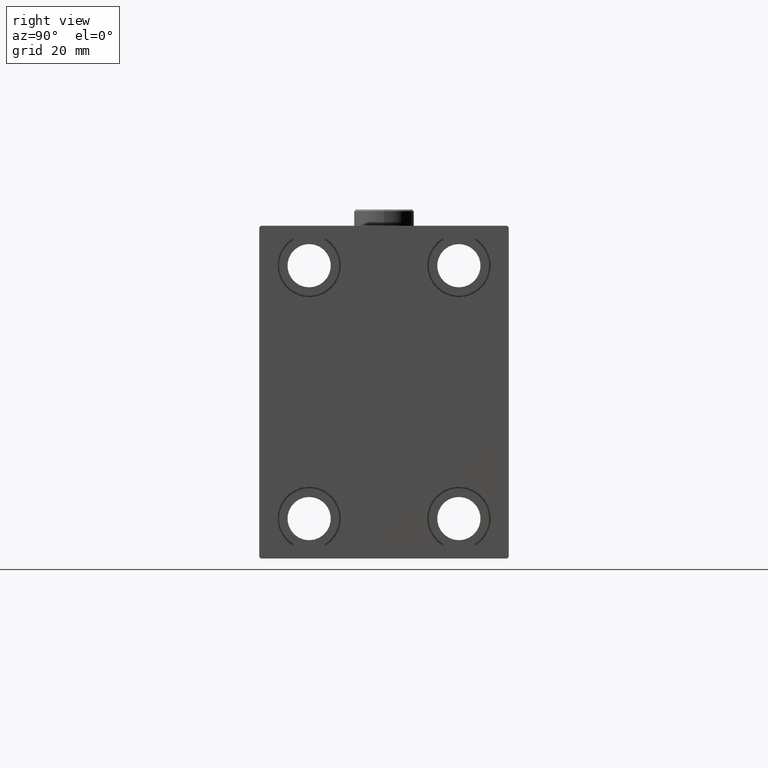
[diagram: clean part render]
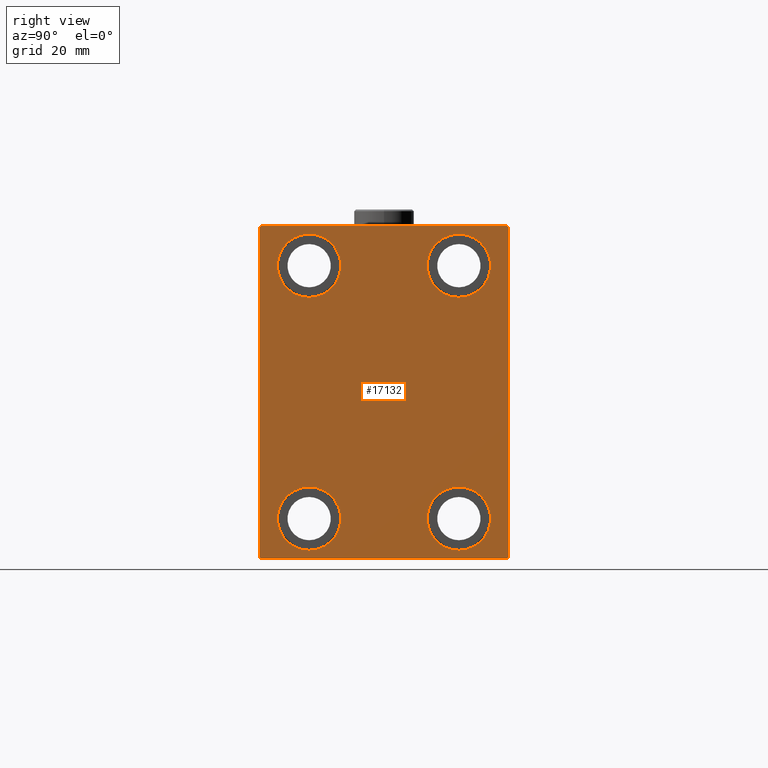
[diagram: same view with one face highlighted and labeled with its STEP entity id]
A machine part, right view. The second image highlights one B-rep face of the part: STEP entity #17132.
In plain terms, the highlighted planar face has unit normal (1, 0, 0).
Its self-contained STEP definition (entity closure, byte-faithful):
#174 = DIRECTION ( 'NONE',  ( -1.000000000000000000, -0.000000000000000000, -0.000000000000000000 ) ) ;
#225 = FACE_OUTER_BOUND ( 'NONE', #36440, .T. ) ;
#467 = FACE_BOUND ( 'NONE', #10598, .T. ) ;
#769 = LINE ( 'NONE', #16269, #4044 ) ;
#878 = DIRECTION ( 'NONE',  ( -1.000000000000000000, -0.000000000000000000, -0.000000000000000000 ) ) ;
#938 = DIRECTION ( 'NONE',  ( 0.000000000000000000, 0.000000000000000000, -1.000000000000000000 ) ) ;
#2581 = DIRECTION ( 'NONE',  ( -1.000000000000000000, -0.000000000000000000, -0.000000000000000000 ) ) ;
#3008 = AXIS2_PLACEMENT_3D ( 'NONE', #43841, #47713, #7205 ) ;
#3702 = CARTESIAN_POINT ( 'NONE',  ( 83.00000000000000000, -22.49999999999999645, 37.99999999999999289 ) ) ;
#4044 = VECTOR ( 'NONE', #45626, 1000.000000000000114 ) ;
#4159 = LINE ( 'NONE', #22624, #47529 ) ;
#5633 = EDGE_CURVE ( 'NONE', #19678, #9036, #32046, .T. ) ;
#5710 = ORIENTED_EDGE ( 'NONE', *, *, #21813, .T. ) ;
#6070 = CIRCLE ( 'NONE', #33197, 9.500000000000001776 ) ;
#6103 = CIRCLE ( 'NONE', #15410, 9.500000000000001776 ) ;
#7205 = DIRECTION ( 'NONE',  ( 0.000000000000000000, 0.000000000000000000, 1.000000000000000000 ) ) ;
#7334 = EDGE_CURVE ( 'NONE', #37971, #10235, #22651, .T. ) ;
#7455 = ORIENTED_EDGE ( 'NONE', *, *, #7334, .T. ) ;
#7587 = DIRECTION ( 'NONE',  ( 0.000000000000000000, 0.000000000000000000, 1.000000000000000000 ) ) ;
#7688 = CARTESIAN_POINT ( 'NONE',  ( 83.00000000000000000, 22.49999999999999645, -37.99999999999999289 ) ) ;
#8477 = CIRCLE ( 'NONE', #22461, 9.500000000000001776 ) ;
#9036 = VERTEX_POINT ( 'NONE', #24023 ) ;
#9299 = AXIS2_PLACEMENT_3D ( 'NONE', #36854, #29593, #33226 ) ;
#10235 = VERTEX_POINT ( 'NONE', #31985 ) ;
#10387 = EDGE_CURVE ( 'NONE', #45290, #42414, #30142, .T. ) ;
#10598 = EDGE_LOOP ( 'NONE', ( #28200, #46732 ) ) ;
#10703 = VERTEX_POINT ( 'NONE', #43814 ) ;
#10740 = CIRCLE ( 'NONE', #19280, 9.500000000000001776 ) ;
#10856 = ORIENTED_EDGE ( 'NONE', *, *, #10387, .T. ) ;
#10876 = ORIENTED_EDGE ( 'NONE', *, *, #5633, .T. ) ;
#11071 = CIRCLE ( 'NONE', #35101, 9.500000000000001776 ) ;
#11252 = VERTEX_POINT ( 'NONE', #24249 ) ;
#11629 = DIRECTION ( 'NONE',  ( 1.000000000000000000, 0.000000000000000000, 0.000000000000000000 ) ) ;
#11756 = ORIENTED_EDGE ( 'NONE', *, *, #45772, .T. ) ;
#11865 = PLANE ( 'NONE',  #43423 ) ;
#12133 = ORIENTED_EDGE ( 'NONE', *, *, #22102, .T. ) ;
#12591 = EDGE_CURVE ( 'NONE', #22721, #24938, #8477, .T. ) ;
#13266 = ORIENTED_EDGE ( 'NONE', *, *, #42863, .T. ) ;
#13314 = DIRECTION ( 'NONE',  ( 0.000000000000000000, 0.000000000000000000, 1.000000000000000000 ) ) ;
#13494 = CIRCLE ( 'NONE', #40586, 9.500000000000001776 ) ;
#13739 = DIRECTION ( 'NONE',  ( 0.000000000000000000, 0.000000000000000000, 1.000000000000000000 ) ) ;
#13778 = CARTESIAN_POINT ( 'NONE',  ( 83.00000000000000000, 22.49999999999999645, -37.99999999999999289 ) ) ;
#14259 = LINE ( 'NONE', #36568, #23415 ) ;
#15410 = AXIS2_PLACEMENT_3D ( 'NONE', #46967, #2581, #13739 ) ;
#15583 = DIRECTION ( 'NONE',  ( 0.000000000000000000, -0.7071067811865474617, -0.7071067811865474617 ) ) ;
#15592 = LINE ( 'NONE', #22895, #23033 ) ;
#15665 = DIRECTION ( 'NONE',  ( 0.000000000000000000, 0.000000000000000000, 1.000000000000000000 ) ) ;
#15897 = CARTESIAN_POINT ( 'NONE',  ( 83.00000000000000000, -22.50000000000000711, -37.99999999999999289 ) ) ;
#16269 = CARTESIAN_POINT ( 'NONE',  ( 83.00000000000000000, 43.50000000000000711, -43.50000000000000711 ) ) ;
#16752 = CARTESIAN_POINT ( 'NONE',  ( 83.00000000000000000, 22.50000000000000355, 28.49999999999998934 ) ) ;
#17059 = CIRCLE ( 'NONE', #9299, 9.500000000000001776 ) ;
#17115 = EDGE_CURVE ( 'NONE', #21779, #32624, #17059, .T. ) ;
#17132 = ADVANCED_FACE ( 'NONE', ( #467, #18662, #30313, #45321, #225 ), #11865, .T. ) ;
#17474 = DIRECTION ( 'NONE',  ( 0.000000000000000000, -1.387778780781445676E-16, 1.000000000000000000 ) ) ;
#17859 = ORIENTED_EDGE ( 'NONE', *, *, #37940, .T. ) ;
#18504 = DIRECTION ( 'NONE',  ( -1.000000000000000000, -0.000000000000000000, -0.000000000000000000 ) ) ;
#18662 = FACE_BOUND ( 'NONE', #39366, .T. ) ;
#18769 = VERTEX_POINT ( 'NONE', #37240 ) ;
#19280 = AXIS2_PLACEMENT_3D ( 'NONE', #3702, #18504, #7587 ) ;
#19678 = VERTEX_POINT ( 'NONE', #26517 ) ;
#20014 = VECTOR ( 'NONE', #39069, 1000.000000000000000 ) ;
#20204 = CARTESIAN_POINT ( 'NONE',  ( 83.00000000000000000, -37.00000000000000711, 49.99999999999999289 ) ) ;
#20342 = DIRECTION ( 'NONE',  ( -1.000000000000000000, -0.000000000000000000, -0.000000000000000000 ) ) ;
#21779 = VERTEX_POINT ( 'NONE', #23728 ) ;
#21813 = EDGE_CURVE ( 'NONE', #10235, #18769, #14259, .T. ) ;
#22102 = EDGE_CURVE ( 'NONE', #10703, #19678, #769, .T. ) ;
#22461 = AXIS2_PLACEMENT_3D ( 'NONE', #13778, #20342, #28584 ) ;
#22624 = CARTESIAN_POINT ( 'NONE',  ( 83.00000000000000000, 43.50000000000026290, 43.49999999999965894 ) ) ;
#22651 = LINE ( 'NONE', #45410, #36988 ) ;
#22721 = VERTEX_POINT ( 'NONE', #46225 ) ;
#22732 = VERTEX_POINT ( 'NONE', #38708 ) ;
#22895 = CARTESIAN_POINT ( 'NONE',  ( 83.00000000000000000, -43.49999999999947420, -43.50000000000068212 ) ) ;
#23033 = VECTOR ( 'NONE', #30405, 999.9999999999998863 ) ;
#23415 = VECTOR ( 'NONE', #47709, 1000.000000000000000 ) ;
#23728 = CARTESIAN_POINT ( 'NONE',  ( 83.00000000000000000, -22.49999999999999645, 28.49999999999998934 ) ) ;
#24023 = CARTESIAN_POINT ( 'NONE',  ( 83.00000000000000000, 37.49999999999999289, 49.50000000000000000 ) ) ;
#24249 = CARTESIAN_POINT ( 'NONE',  ( 83.00000000000000000, -36.99999999999997868, -50.00000000000000711 ) ) ;
#24275 = CARTESIAN_POINT ( 'NONE',  ( 83.00000000000000000, 37.50000000000000711, -50.00000000000000000 ) ) ;
#24531 = LINE ( 'NONE', #31812, #20014 ) ;
#24553 = VECTOR ( 'NONE', #17474, 1000.000000000000000 ) ;
#24716 = VECTOR ( 'NONE', #30984, 1000.000000000000000 ) ;
#24938 = VERTEX_POINT ( 'NONE', #45256 ) ;
#24958 = EDGE_CURVE ( 'NONE', #22732, #35567, #11071, .T. ) ;
#25609 = EDGE_CURVE ( 'NONE', #9036, #34053, #4159, .T. ) ;
#26517 = CARTESIAN_POINT ( 'NONE',  ( 83.00000000000000000, 37.50000000000000711, -49.50000000000000000 ) ) ;
#26628 = ORIENTED_EDGE ( 'NONE', *, *, #42376, .T. ) ;
#26658 = CARTESIAN_POINT ( 'NONE',  ( 83.00000000000000000, 0.000000000000000000, 0.000000000000000000 ) ) ;
#28200 = ORIENTED_EDGE ( 'NONE', *, *, #32058, .T. ) ;
#28584 = DIRECTION ( 'NONE',  ( 0.000000000000000000, 0.000000000000000000, 1.000000000000000000 ) ) ;
#29593 = DIRECTION ( 'NONE',  ( -1.000000000000000000, -0.000000000000000000, -0.000000000000000000 ) ) ;
#30142 = CIRCLE ( 'NONE', #3008, 9.500000000000001776 ) ;
#30313 = FACE_BOUND ( 'NONE', #37922, .T. ) ;
#30405 = DIRECTION ( 'NONE',  ( -0.000000000000000000, 0.7071067811865574537, -0.7071067811865376918 ) ) ;
#30984 = DIRECTION ( 'NONE',  ( 0.000000000000000000, -1.000000000000000000, -1.850371707708594316E-16 ) ) ;
#31230 = ORIENTED_EDGE ( 'NONE', *, *, #25609, .T. ) ;
#31812 = CARTESIAN_POINT ( 'NONE',  ( 83.00000000000000000, -37.50000000000000711, -50.00000000000000711 ) ) ;
#31985 = CARTESIAN_POINT ( 'NONE',  ( 83.00000000000000000, -37.50000000000000711, 49.49999999999999289 ) ) ;
#32046 = LINE ( 'NONE', #24275, #24553 ) ;
#32058 = EDGE_CURVE ( 'NONE', #24938, #22721, #13494, .T. ) ;
#32624 = VERTEX_POINT ( 'NONE', #46170 ) ;
#33197 = AXIS2_PLACEMENT_3D ( 'NONE', #42664, #35151, #13314 ) ;
#33226 = DIRECTION ( 'NONE',  ( 0.000000000000000000, 0.000000000000000000, 1.000000000000000000 ) ) ;
#33497 = CARTESIAN_POINT ( 'NONE',  ( 83.00000000000000000, 36.99999999999999289, 50.00000000000000711 ) ) ;
#34053 = VERTEX_POINT ( 'NONE', #33497 ) ;
#34107 = ORIENTED_EDGE ( 'NONE', *, *, #17115, .T. ) ;
#35101 = AXIS2_PLACEMENT_3D ( 'NONE', #15897, #878, #15665 ) ;
#35151 = DIRECTION ( 'NONE',  ( -1.000000000000000000, -0.000000000000000000, -0.000000000000000000 ) ) ;
#35567 = VERTEX_POINT ( 'NONE', #40867 ) ;
#36440 = EDGE_LOOP ( 'NONE', ( #13266, #7455, #5710, #17859, #26628, #12133, #10876, #31230 ) ) ;
#36568 = CARTESIAN_POINT ( 'NONE',  ( 83.00000000000000000, -37.50000000000000711, 49.99999999999999289 ) ) ;
#36854 = CARTESIAN_POINT ( 'NONE',  ( 83.00000000000000000, -22.49999999999999645, 37.99999999999999289 ) ) ;
#36988 = VECTOR ( 'NONE', #15583, 1000.000000000000114 ) ;
#37240 = CARTESIAN_POINT ( 'NONE',  ( 83.00000000000000000, -37.50000000000000711, -49.49999999999999289 ) ) ;
#37922 = EDGE_LOOP ( 'NONE', ( #11756, #10856 ) ) ;
#37940 = EDGE_CURVE ( 'NONE', #18769, #11252, #15592, .T. ) ;
#37971 = VERTEX_POINT ( 'NONE', #20204 ) ;
#38615 = ORIENTED_EDGE ( 'NONE', *, *, #24958, .T. ) ;
#38708 = CARTESIAN_POINT ( 'NONE',  ( 83.00000000000000000, -22.50000000000000711, -47.49999999999999289 ) ) ;
#39069 = DIRECTION ( 'NONE',  ( 0.000000000000000000, 1.000000000000000000, 9.251858538542970348E-17 ) ) ;
#39366 = EDGE_LOOP ( 'NONE', ( #34107, #40050 ) ) ;
#40050 = ORIENTED_EDGE ( 'NONE', *, *, #45470, .T. ) ;
#40586 = AXIS2_PLACEMENT_3D ( 'NONE', #7688, #174, #44792 ) ;
#40867 = CARTESIAN_POINT ( 'NONE',  ( 83.00000000000000000, -22.50000000000000711, -28.49999999999998934 ) ) ;
#41024 = DIRECTION ( 'NONE',  ( -0.000000000000000000, -0.7071067811865425767, 0.7071067811865525687 ) ) ;
#41890 = LINE ( 'NONE', #45049, #24716 ) ;
#42307 = ORIENTED_EDGE ( 'NONE', *, *, #46187, .T. ) ;
#42348 = EDGE_LOOP ( 'NONE', ( #38615, #42307 ) ) ;
#42376 = EDGE_CURVE ( 'NONE', #11252, #10703, #24531, .T. ) ;
#42414 = VERTEX_POINT ( 'NONE', #16752 ) ;
#42664 = CARTESIAN_POINT ( 'NONE',  ( 83.00000000000000000, 22.50000000000000355, 37.99999999999999289 ) ) ;
#42863 = EDGE_CURVE ( 'NONE', #34053, #37971, #41890, .T. ) ;
#43423 = AXIS2_PLACEMENT_3D ( 'NONE', #26658, #11629, #938 ) ;
#43814 = CARTESIAN_POINT ( 'NONE',  ( 83.00000000000000000, 37.00000000000000711, -50.00000000000000000 ) ) ;
#43841 = CARTESIAN_POINT ( 'NONE',  ( 83.00000000000000000, 22.50000000000000355, 37.99999999999999289 ) ) ;
#44563 = CARTESIAN_POINT ( 'NONE',  ( 83.00000000000000000, 22.50000000000000355, 47.49999999999999289 ) ) ;
#44792 = DIRECTION ( 'NONE',  ( 0.000000000000000000, 0.000000000000000000, 1.000000000000000000 ) ) ;
#45049 = CARTESIAN_POINT ( 'NONE',  ( 83.00000000000000000, 37.49999999999999289, 50.00000000000000711 ) ) ;
#45256 = CARTESIAN_POINT ( 'NONE',  ( 83.00000000000000000, 22.49999999999999645, -47.49999999999999289 ) ) ;
#45290 = VERTEX_POINT ( 'NONE', #44563 ) ;
#45321 = FACE_BOUND ( 'NONE', #42348, .T. ) ;
#45410 = CARTESIAN_POINT ( 'NONE',  ( 83.00000000000000000, -43.50000000000000711, 43.50000000000000711 ) ) ;
#45470 = EDGE_CURVE ( 'NONE', #32624, #21779, #10740, .T. ) ;
#45626 = DIRECTION ( 'NONE',  ( -0.000000000000000000, 0.7071067811865474617, 0.7071067811865474617 ) ) ;
#45772 = EDGE_CURVE ( 'NONE', #42414, #45290, #6070, .T. ) ;
#46170 = CARTESIAN_POINT ( 'NONE',  ( 83.00000000000000000, -22.49999999999999645, 47.49999999999999289 ) ) ;
#46187 = EDGE_CURVE ( 'NONE', #35567, #22732, #6103, .T. ) ;
#46225 = CARTESIAN_POINT ( 'NONE',  ( 83.00000000000000000, 22.49999999999999645, -28.49999999999998934 ) ) ;
#46732 = ORIENTED_EDGE ( 'NONE', *, *, #12591, .T. ) ;
#46967 = CARTESIAN_POINT ( 'NONE',  ( 83.00000000000000000, -22.50000000000000711, -37.99999999999999289 ) ) ;
#47529 = VECTOR ( 'NONE', #41024, 999.9999999999998863 ) ;
#47709 = DIRECTION ( 'NONE',  ( 0.000000000000000000, 0.000000000000000000, -1.000000000000000000 ) ) ;
#47713 = DIRECTION ( 'NONE',  ( -1.000000000000000000, -0.000000000000000000, -0.000000000000000000 ) ) ;